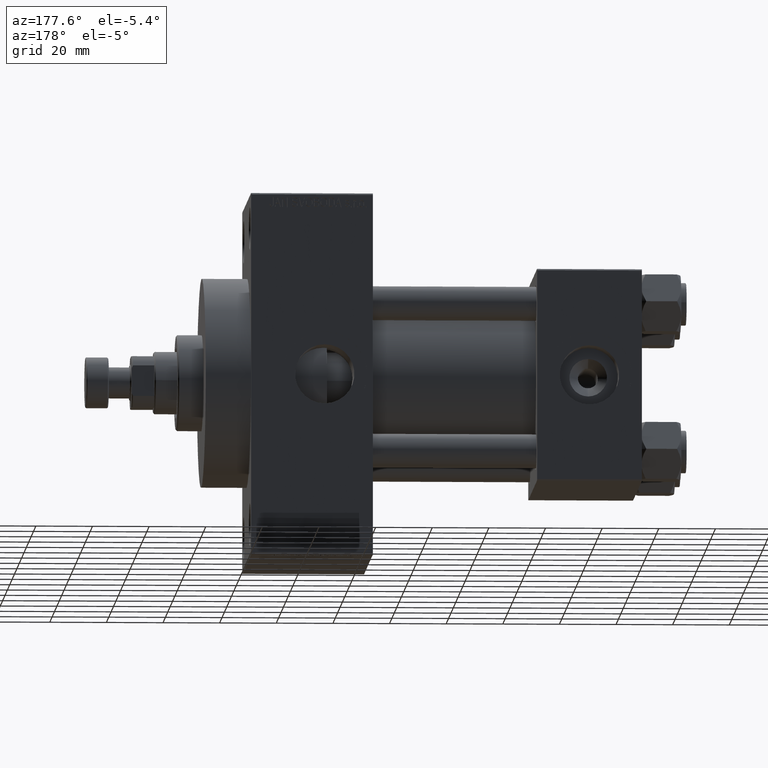
[diagram: clean part render]
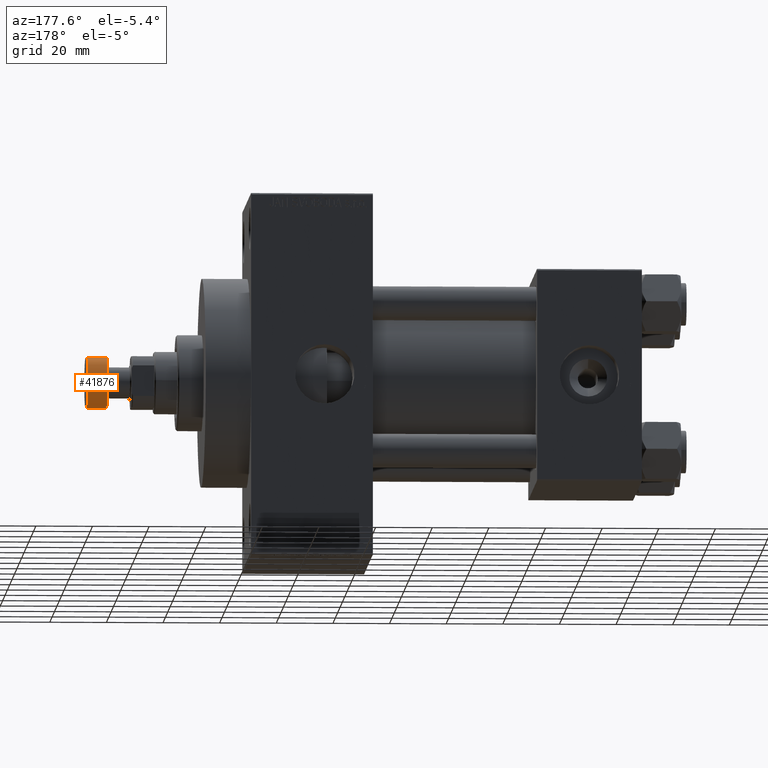
[diagram: same view with one face highlighted and labeled with its STEP entity id]
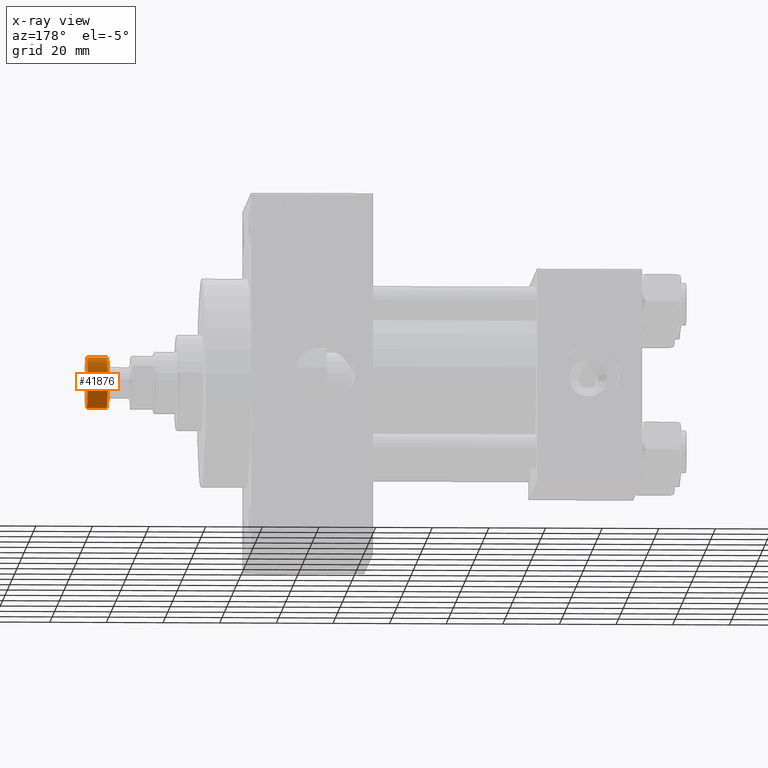
[diagram: x-ray of the same camera — body ghosted, the highlighted face saturated]
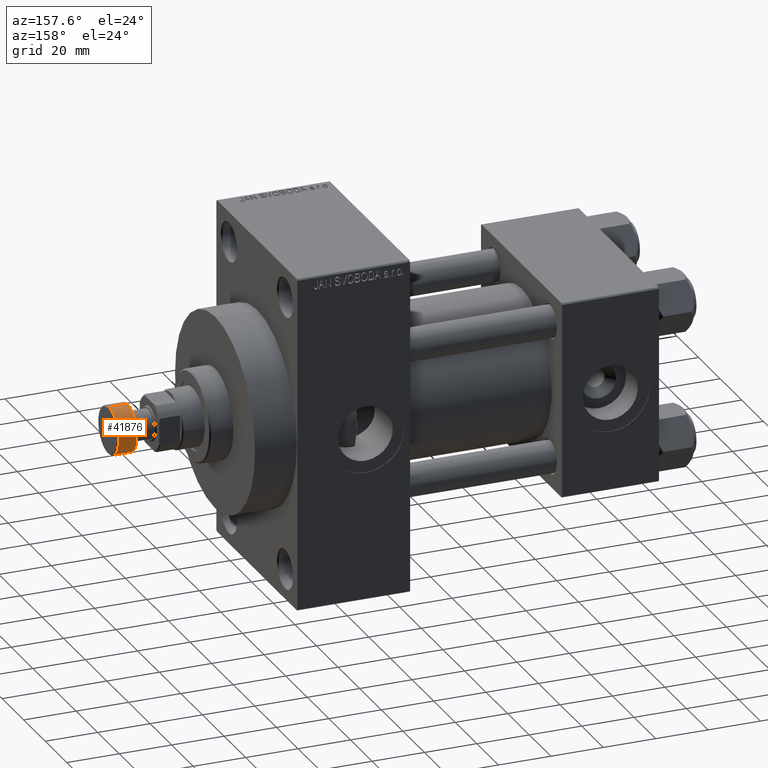
[diagram: same view with one face highlighted and labeled with its STEP entity id]
A machine part, auxiliary view. The second image highlights one B-rep face of the part: STEP entity #41876.
The next image is the same camera in x-ray: the body ghosted, the highlighted face saturated — about 0% of this face is hidden behind the body in this view.
A second angle (auxiliary view) of the same face is appended — the face is thin or edge-on in the first view.
In plain terms, the highlighted cylindrical surface (edge-blend (fillet) strip) has radius 9 mm, axis along (1, 0, 0).
Its self-contained STEP definition (entity closure, byte-faithful):
#206 = CARTESIAN_POINT ( 'NONE',  ( 0.000000000000000000, 0.000000000000000000, -7.500000000000000000 ) ) ;
#1647 = AXIS2_PLACEMENT_3D ( 'NONE', #36417, #31860, #2698 ) ;
#1691 = CARTESIAN_POINT ( 'NONE',  ( -9.000000000000000000, 1.102182119232617714E-15, -0.5000000000000004441 ) ) ;
#2651 = CARTESIAN_POINT ( 'NONE',  ( 9.000000000000000000, 0.000000000000000000, -0.5000000000000004441 ) ) ;
#2698 = DIRECTION ( 'NONE',  ( 1.000000000000000000, 0.000000000000000000, 0.000000000000000000 ) ) ;
#3362 = DIRECTION ( 'NONE',  ( 1.000000000000000000, 0.000000000000000000, 0.000000000000000000 ) ) ;
#3828 = CIRCLE ( 'NONE', #30771, 9.000000000000000000 ) ;
#4542 = ORIENTED_EDGE ( 'NONE', *, *, #28466, .T. ) ;
#8796 = EDGE_CURVE ( 'NONE', #46368, #37909, #3828, .T. ) ;
#11635 = EDGE_LOOP ( 'NONE', ( #4542, #34904, #44758, #37337 ) ) ;
#12574 = CARTESIAN_POINT ( 'NONE',  ( -9.000000000000000000, 1.102182119232617714E-15, -7.500000000000000000 ) ) ;
#13574 = DIRECTION ( 'NONE',  ( 0.000000000000000000, 0.000000000000000000, 1.000000000000000000 ) ) ;
#13917 = DIRECTION ( 'NONE',  ( 0.000000000000000000, 0.000000000000000000, 1.000000000000000000 ) ) ;
#14146 = LINE ( 'NONE', #28839, #17867 ) ;
#14814 = VERTEX_POINT ( 'NONE', #12574 ) ;
#16428 = VERTEX_POINT ( 'NONE', #40834 ) ;
#17867 = VECTOR ( 'NONE', #13917, 1000.000000000000000 ) ;
#17888 = LINE ( 'NONE', #32582, #42845 ) ;
#22093 = AXIS2_PLACEMENT_3D ( 'NONE', #206, #32998, #3362 ) ;
#27290 = EDGE_CURVE ( 'NONE', #16428, #37909, #17888, .T. ) ;
#28466 = EDGE_CURVE ( 'NONE', #16428, #14814, #42881, .T. ) ;
#28839 = CARTESIAN_POINT ( 'NONE',  ( -9.000000000000000000, 1.102182119232617714E-15, -8.000000000000000000 ) ) ;
#29956 = CARTESIAN_POINT ( 'NONE',  ( 0.000000000000000000, 0.000000000000000000, -0.5000000000000004441 ) ) ;
#30771 = AXIS2_PLACEMENT_3D ( 'NONE', #29956, #41276, #44912 ) ;
#31860 = DIRECTION ( 'NONE',  ( 0.000000000000000000, 0.000000000000000000, 1.000000000000000000 ) ) ;
#32582 = CARTESIAN_POINT ( 'NONE',  ( 9.000000000000000000, 0.000000000000000000, -8.000000000000000000 ) ) ;
#32998 = DIRECTION ( 'NONE',  ( 0.000000000000000000, 0.000000000000000000, 1.000000000000000000 ) ) ;
#34904 = ORIENTED_EDGE ( 'NONE', *, *, #42600, .T. ) ;
#35715 = CYLINDRICAL_SURFACE ( 'NONE', #1647, 9.000000000000000000 ) ;
#36417 = CARTESIAN_POINT ( 'NONE',  ( 0.000000000000000000, 0.000000000000000000, -8.000000000000000000 ) ) ;
#37337 = ORIENTED_EDGE ( 'NONE', *, *, #27290, .F. ) ;
#37909 = VERTEX_POINT ( 'NONE', #2651 ) ;
#40834 = CARTESIAN_POINT ( 'NONE',  ( 9.000000000000000000, 0.000000000000000000, -7.500000000000000000 ) ) ;
#41276 = DIRECTION ( 'NONE',  ( -0.000000000000000000, -0.000000000000000000, -1.000000000000000000 ) ) ;
#41876 = ADVANCED_FACE ( 'NONE', ( #47277 ), #35715, .T. ) ;
#42600 = EDGE_CURVE ( 'NONE', #14814, #46368, #14146, .T. ) ;
#42845 = VECTOR ( 'NONE', #13574, 1000.000000000000000 ) ;
#42881 = CIRCLE ( 'NONE', #22093, 9.000000000000000000 ) ;
#44758 = ORIENTED_EDGE ( 'NONE', *, *, #8796, .T. ) ;
#44912 = DIRECTION ( 'NONE',  ( 1.000000000000000000, 0.000000000000000000, 0.000000000000000000 ) ) ;
#46368 = VERTEX_POINT ( 'NONE', #1691 ) ;
#47277 = FACE_OUTER_BOUND ( 'NONE', #11635, .T. ) ;